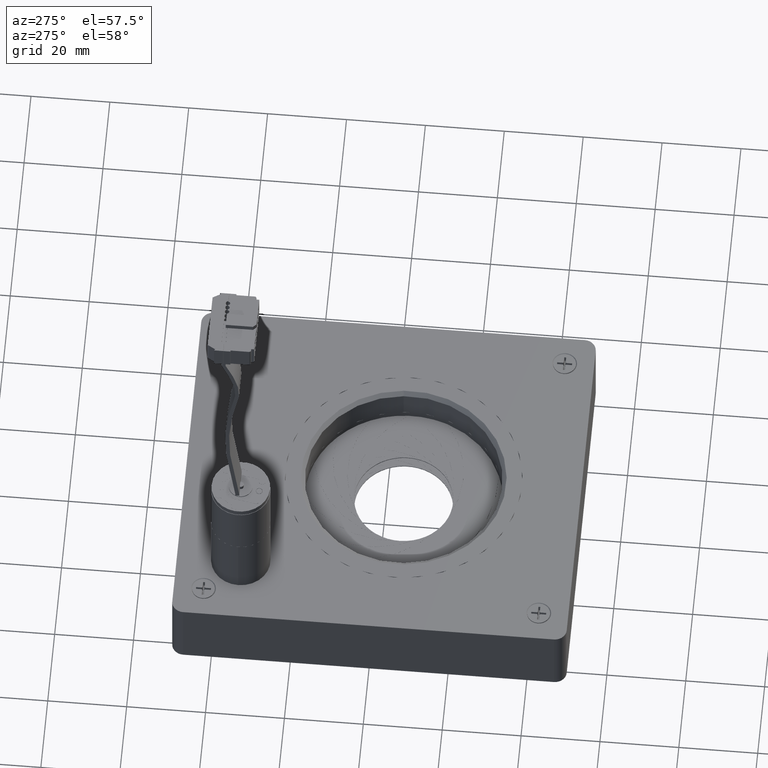
[diagram: clean part render]
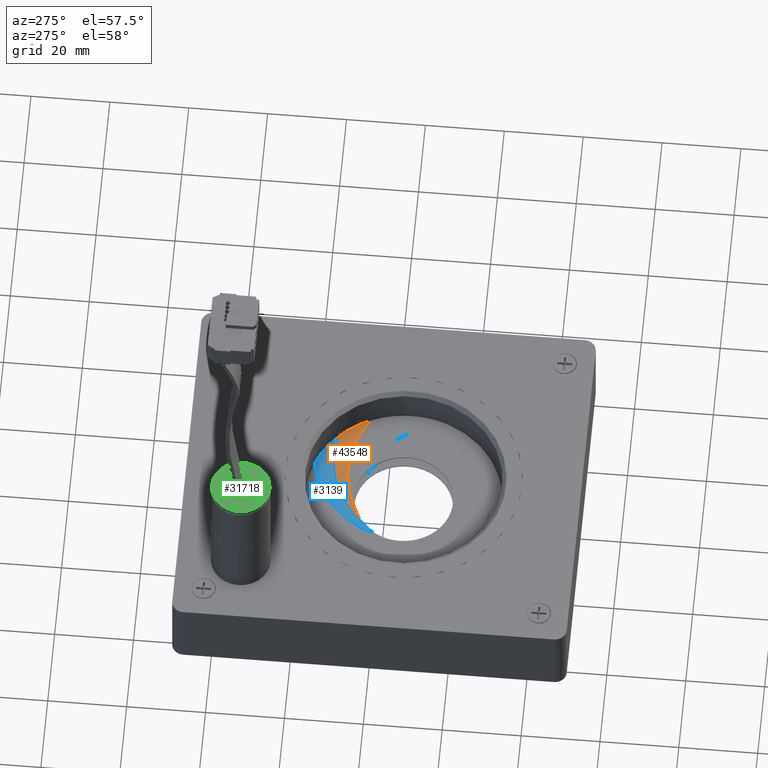
[diagram: same view with three faces highlighted in distinct colors, each labeled with its STEP entity id]
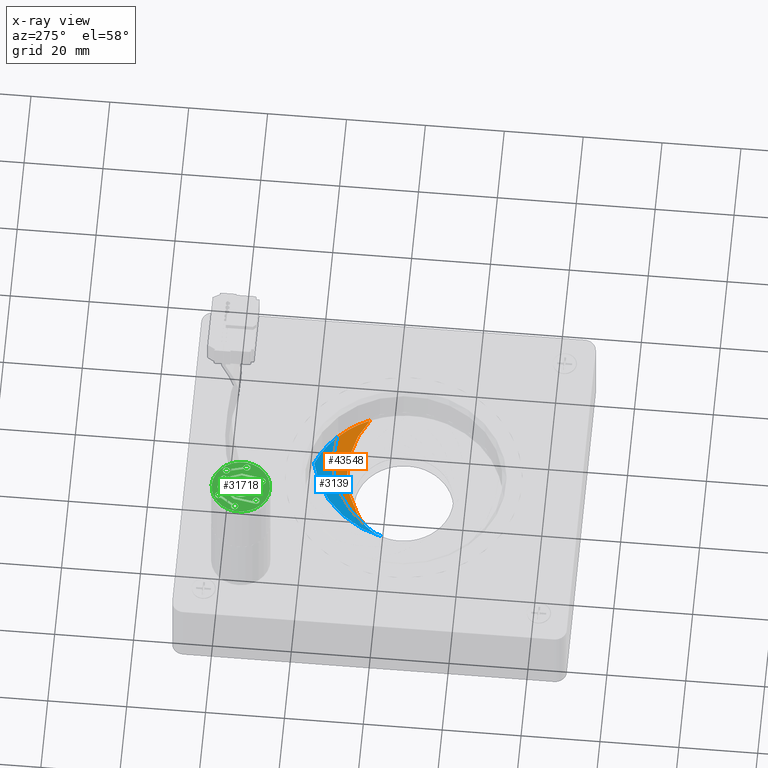
[diagram: x-ray of the same camera — body ghosted, the three highlighted faces saturated]
A machine part, auxiliary view with three faces highlighted in distinct colors.
The next image is the same camera in x-ray (body ghosted, the three faces saturated) — at least one of them is partly hidden behind the body in this view.
Their STEP definitions:

[orange] entity #43548 — the highlighted planar face has unit normal (-0, 0, 1).
#184 = CARTESIAN_POINT ( 'NONE',  ( 11.78796417266440800, -12.36593753290334300, -8.199999999999999300 ) ) ;
#268 = PLANE ( 'NONE',  #31407 ) ;
#1012 = CIRCLE ( 'NONE', #7680, 25.03526093125014300 ) ;
#3168 = ORIENTED_EDGE ( 'NONE', *, *, #27149, .F. ) ;
#4223 = DIRECTION ( 'NONE',  ( -0.9396926207859058700, 0.3420201433256759300, -5.255450071869759100E-017 ) ) ;
#5169 = CARTESIAN_POINT ( 'NONE',  ( 17.01892407112355000, 13.36084184772338500, -8.200000000000006400 ) ) ;
#6386 = ORIENTED_EDGE ( 'NONE', *, *, #13277, .T. ) ;
#7162 = EDGE_LOOP ( 'NONE', ( #11475, #3168, #6386, #29912 ) ) ;
#7435 = CIRCLE ( 'NONE', #33882, 12.50000000000008700 ) ;
#7512 = DIRECTION ( 'NONE',  ( -4.049638948671294400E-018, 1.425327888812758600E-016, 1.000000000000000000 ) ) ;
#7596 = EDGE_CURVE ( 'NONE', #24291, #20402, #1012, .T. ) ;
#7680 = AXIS2_PLACEMENT_3D ( 'NONE', #11332, #7512, #48289 ) ;
#8429 = DIRECTION ( 'NONE',  ( -0.9396926207859057600, 0.3420201433256759300, -6.607666755429408100E-017 ) ) ;
#9042 = FACE_OUTER_BOUND ( 'NONE', #7162, .T. ) ;
#9774 = CIRCLE ( 'NONE', #45657, 26.26319254412177500 ) ;
#11332 = CARTESIAN_POINT ( 'NONE',  ( 4.955342778693594300E-015, -5.000000000000010700, -8.200000000000001100 ) ) ;
#11475 = ORIENTED_EDGE ( 'NONE', *, *, #50900, .F. ) ;
#11943 = DIRECTION ( 'NONE',  ( 4.049638948671294400E-018, -1.425327888812758600E-016, -1.000000000000000000 ) ) ;
#13277 = EDGE_CURVE ( 'NONE', #28246, #24291, #9774, .T. ) ;
#14160 = CARTESIAN_POINT ( 'NONE',  ( -8.974734662410671900, 3.700812475816622500, -8.200000000000025900 ) ) ;
#14968 = AXIS2_PLACEMENT_3D ( 'NONE', #184, #32836, #8429 ) ;
#16285 = DIRECTION ( 'NONE',  ( -4.049638948672907600E-018, 1.425327888812764300E-016, 1.000000000000000000 ) ) ;
#20402 = VERTEX_POINT ( 'NONE', #5169 ) ;
#24291 = VERTEX_POINT ( 'NONE', #29785 ) ;
#27149 = EDGE_CURVE ( 'NONE', #28246, #37000, #7435, .T. ) ;
#28246 = VERTEX_POINT ( 'NONE', #32423 ) ;
#29785 = CARTESIAN_POINT ( 'NONE',  ( 22.74179111053886300, 5.467818635245714100, -8.200000000000025900 ) ) ;
#29912 = ORIENTED_EDGE ( 'NONE', *, *, #7596, .T. ) ;
#31407 = AXIS2_PLACEMENT_3D ( 'NONE', #36727, #16285, #4223 ) ;
#32423 = CARTESIAN_POINT ( 'NONE',  ( -5.045852014572291800, 6.436318351945204500, -8.200000000000002800 ) ) ;
#32836 = DIRECTION ( 'NONE',  ( 4.049638948671294400E-018, -1.425327888812758600E-016, -1.000000000000000000 ) ) ;
#33882 = AXIS2_PLACEMENT_3D ( 'NONE', #44719, #37214, #41150 ) ;
#36265 = CIRCLE ( 'NONE', #14968, 26.25319254412178100 ) ;
#36727 = CARTESIAN_POINT ( 'NONE',  ( 4.955342778693594300E-015, -5.000000000000010700, -8.200000000000001100 ) ) ;
#36892 = DIRECTION ( 'NONE',  ( -0.9396926207859056500, 0.3420201433256759800, -6.605150813491152800E-017 ) ) ;
#37000 = VERTEX_POINT ( 'NONE', #14160 ) ;
#37214 = DIRECTION ( 'NONE',  ( -4.049638948671294400E-018, 1.425327888812758600E-016, 1.000000000000000000 ) ) ;
#41150 = DIRECTION ( 'NONE',  ( -0.9396926207859057600, 0.3420201433256758700, 0.0000000000000000000 ) ) ;
#41154 = CARTESIAN_POINT ( 'NONE',  ( 8.071836571422695200, -16.31629751459794900, -8.199999999999999300 ) ) ;
#43548 = ADVANCED_FACE ( 'NONE', ( #9042 ), #268, .T. ) ;
#44719 = CARTESIAN_POINT ( 'NONE',  ( 4.955342778693594300E-015, -5.000000000000010700, -8.200000000000001100 ) ) ;
#45657 = AXIS2_PLACEMENT_3D ( 'NONE', #41154, #11943, #36892 ) ;
#48289 = DIRECTION ( 'NONE',  ( -0.9396926207859056500, 0.3420201433256759300, -6.929120813801653000E-017 ) ) ;
#50900 = EDGE_CURVE ( 'NONE', #37000, #20402, #36265, .T. ) ;

[blue] entity #3139 — the highlighted planar face has unit normal (-0, 0, 1).
#708 = DIRECTION ( 'NONE',  ( -0.9396926207859056500, 0.3420201433256759300, -6.929120813801653000E-017 ) ) ;
#3139 = ADVANCED_FACE ( 'NONE', ( #31648 ), #29974, .T. ) ;
#6081 = ORIENTED_EDGE ( 'NONE', *, *, #38958, .F. ) ;
#7327 = ORIENTED_EDGE ( 'NONE', *, *, #18150, .T. ) ;
#7507 = AXIS2_PLACEMENT_3D ( 'NONE', #21792, #13500, #49918 ) ;
#10501 = AXIS2_PLACEMENT_3D ( 'NONE', #49411, #37566, #12468 ) ;
#11055 = CARTESIAN_POINT ( 'NONE',  ( 8.697045635275252100, 18.47606626148674600, -8.200000000000027700 ) ) ;
#12468 = DIRECTION ( 'NONE',  ( -0.9396926207859056500, 0.3420201433256758700, -6.605150813491150300E-017 ) ) ;
#12856 = CIRCLE ( 'NONE', #10501, 26.26319254412178200 ) ;
#13500 = DIRECTION ( 'NONE',  ( -4.049638948672907600E-018, 1.425327888812764300E-016, 1.000000000000000000 ) ) ;
#15225 = AXIS2_PLACEMENT_3D ( 'NONE', #42279, #42463, #21712 ) ;
#16606 = CARTESIAN_POINT ( 'NONE',  ( -9.038248960886040400, 3.634816484502962000, -8.200000000000025900 ) ) ;
#17256 = CARTESIAN_POINT ( 'NONE',  ( 4.955342778693594300E-015, -5.000000000000010700, -8.200000000000001100 ) ) ;
#18150 = EDGE_CURVE ( 'NONE', #45176, #29899, #12856, .T. ) ;
#20005 = ORIENTED_EDGE ( 'NONE', *, *, #31679, .F. ) ;
#21150 = CARTESIAN_POINT ( 'NONE',  ( -11.62123044693141200, -0.3959797025516785800, -8.200000000000002800 ) ) ;
#21712 = DIRECTION ( 'NONE',  ( -0.9396926207859057600, 0.3420201433256759800, -6.607666755429406900E-017 ) ) ;
#21792 = CARTESIAN_POINT ( 'NONE',  ( 4.955342778693594300E-015, -5.000000000000010700, -8.200000000000001100 ) ) ;
#22492 = VERTEX_POINT ( 'NONE', #21150 ) ;
#22865 = DIRECTION ( 'NONE',  ( -4.049638948671294400E-018, 1.425327888812758600E-016, 1.000000000000000000 ) ) ;
#23471 = AXIS2_PLACEMENT_3D ( 'NONE', #17256, #33708, #708 ) ;
#25056 = EDGE_LOOP ( 'NONE', ( #20005, #6081, #7327, #29833 ) ) ;
#25610 = CIRCLE ( 'NONE', #39151, 12.50000000000008700 ) ;
#29833 = ORIENTED_EDGE ( 'NONE', *, *, #49157, .T. ) ;
#29899 = VERTEX_POINT ( 'NONE', #48993 ) ;
#29974 = PLANE ( 'NONE',  #7507 ) ;
#31648 = FACE_OUTER_BOUND ( 'NONE', #25056, .T. ) ;
#31679 = EDGE_CURVE ( 'NONE', #22492, #34234, #52618, .T. ) ;
#33708 = DIRECTION ( 'NONE',  ( -4.049638948671294400E-018, 1.425327888812758600E-016, 1.000000000000000000 ) ) ;
#34234 = VERTEX_POINT ( 'NONE', #11055 ) ;
#37566 = DIRECTION ( 'NONE',  ( 4.049638948671294400E-018, -1.425327888812758600E-016, -1.000000000000000000 ) ) ;
#38958 = EDGE_CURVE ( 'NONE', #45176, #22492, #25610, .T. ) ;
#39151 = AXIS2_PLACEMENT_3D ( 'NONE', #42931, #22865, #50861 ) ;
#42279 = CARTESIAN_POINT ( 'NONE',  ( 13.70948108677925800, -7.294180334214204600, -8.200000000000024200 ) ) ;
#42463 = DIRECTION ( 'NONE',  ( 4.049638948671294400E-018, -1.425327888812758600E-016, -1.000000000000000000 ) ) ;
#42931 = CARTESIAN_POINT ( 'NONE',  ( 4.955342778693594300E-015, -5.000000000000010700, -8.200000000000001100 ) ) ;
#45176 = VERTEX_POINT ( 'NONE', #16606 ) ;
#47742 = CIRCLE ( 'NONE', #23471, 25.03526093125014300 ) ;
#48993 = CARTESIAN_POINT ( 'NONE',  ( 17.00481457496291100, 13.37391006745454900, -8.200000000000006400 ) ) ;
#49157 = EDGE_CURVE ( 'NONE', #29899, #34234, #47742, .T. ) ;
#49411 = CARTESIAN_POINT ( 'NONE',  ( 11.78796417266440800, -12.36593753290334300, -8.199999999999999300 ) ) ;
#49918 = DIRECTION ( 'NONE',  ( -0.9396926207859058700, 0.3420201433256759300, -5.255450071869759100E-017 ) ) ;
#50861 = DIRECTION ( 'NONE',  ( -0.9396926207859057600, 0.3420201433256758700, 0.0000000000000000000 ) ) ;
#52618 = CIRCLE ( 'NONE', #15225, 26.25319254412178800 ) ;

[green] entity #31718 — the highlighted planar face has unit normal (-0, -0, 1).
#19 = ORIENTED_EDGE ( 'NONE', *, *, #25878, .F. ) ;
#253 = CARTESIAN_POINT ( 'NONE',  ( -32.39554972308153000, 29.69614231960646600, 36.39999999999999900 ) ) ;
#350 = DIRECTION ( 'NONE',  ( 0.0000000000000000000, -1.000000000000000000, 0.0000000000000000000 ) ) ;
#376 = CARTESIAN_POINT ( 'NONE',  ( -28.63088670356299300, 39.68042613009305300, 36.39999999999999900 ) ) ;
#445 = VECTOR ( 'NONE', #31306, 1000.000000000000000 ) ;
#512 = VERTEX_POINT ( 'NONE', #1417 ) ;
#599 = FACE_BOUND ( 'NONE', #1780, .T. ) ;
#824 = CIRCLE ( 'NONE', #18021, 0.9000000000000050200 ) ;
#826 = CARTESIAN_POINT ( 'NONE',  ( -25.59465210520176000, 37.61550586504789400, 36.39999999999999900 ) ) ;
#1417 = CARTESIAN_POINT ( 'NONE',  ( -31.13229839621400400, 40.12149250136715000, 36.39999999999999900 ) ) ;
#1464 = DIRECTION ( 'NONE',  ( 0.0000000000000000000, -1.000000000000000000, 0.0000000000000000000 ) ) ;
#1652 = CARTESIAN_POINT ( 'NONE',  ( -23.65323640222665700, 36.99864550317936100, 36.39999999999999900 ) ) ;
#1780 = EDGE_LOOP ( 'NONE', ( #12984, #32257, #40547, #16226, #18443, #26363, #21147, #3741, #12786, #26232 ) ) ;
#1952 = EDGE_CURVE ( 'NONE', #2207, #3678, #38821, .T. ) ;
#1992 = VERTEX_POINT ( 'NONE', #6483 ) ;
#2015 = DIRECTION ( 'NONE',  ( -1.063288424787887700E-017, -6.030208312509518900E-017, 1.000000000000000000 ) ) ;
#2072 = EDGE_CURVE ( 'NONE', #31536, #28526, #50967, .T. ) ;
#2144 = LINE ( 'NONE', #48854, #43953 ) ;
#2160 = CARTESIAN_POINT ( 'NONE',  ( -34.12253862811201100, 34.87470479599903700, 36.39999999999999900 ) ) ;
#2188 = EDGE_CURVE ( 'NONE', #17546, #9780, #2144, .T. ) ;
#2207 = VERTEX_POINT ( 'NONE', #16384 ) ;
#2235 = DIRECTION ( 'NONE',  ( -1.063288424787887700E-017, -6.030208312509518900E-017, 1.000000000000000000 ) ) ;
#2286 = VECTOR ( 'NONE', #26700, 1000.000000000000000 ) ;
#2501 = EDGE_CURVE ( 'NONE', #43810, #11562, #46481, .T. ) ;
#2617 = CARTESIAN_POINT ( 'NONE',  ( -31.00647263243760000, 39.84550125574395500, 36.39999999999999900 ) ) ;
#3074 = DIRECTION ( 'NONE',  ( -1.063288424787887700E-017, -6.030208312509518900E-017, 1.000000000000000000 ) ) ;
#3202 = DIRECTION ( 'NONE',  ( -1.875376730785725100E-015, -1.000000000000000000, 0.0000000000000000000 ) ) ;
#3678 = VERTEX_POINT ( 'NONE', #13250 ) ;
#3741 = ORIENTED_EDGE ( 'NONE', *, *, #25792, .F. ) ;
#4048 = CIRCLE ( 'NONE', #33656, 0.9000000000000050200 ) ;
#4081 = VECTOR ( 'NONE', #34589, 999.9999999999998900 ) ;
#4172 = CARTESIAN_POINT ( 'NONE',  ( -26.12947501091193600, 38.33935975881905000, 36.39999999999999900 ) ) ;
#4369 = CIRCLE ( 'NONE', #7628, 0.9000000000000050200 ) ;
#4500 = AXIS2_PLACEMENT_3D ( 'NONE', #52413, #43963, #44124 ) ;
#4604 = CARTESIAN_POINT ( 'NONE',  ( -25.20645312609236300, 28.42851062263787700, 36.39999999999999900 ) ) ;
#5626 = DIRECTION ( 'NONE',  ( 0.0000000000000000000, -1.000000000000000000, 0.0000000000000000000 ) ) ;
#5761 = CARTESIAN_POINT ( 'NONE',  ( -26.09278010380334900, 29.48479398253806100, 36.39999999999999900 ) ) ;
#5771 = DIRECTION ( 'NONE',  ( 0.0000000000000000000, -1.000000000000000000, 0.0000000000000000000 ) ) ;
#5849 = VERTEX_POINT ( 'NONE', #9328 ) ;
#5893 = CIRCLE ( 'NONE', #5963, 0.9000000000000050200 ) ;
#5963 = AXIS2_PLACEMENT_3D ( 'NONE', #35073, #2235, #39732 ) ;
#5993 = AXIS2_PLACEMENT_3D ( 'NONE', #43420, #22639, #31035 ) ;
#6169 = CARTESIAN_POINT ( 'NONE',  ( -28.99987157061260800, 37.95954235763292000, 36.39999999999999900 ) ) ;
#6483 = CARTESIAN_POINT ( 'NONE',  ( -23.62806331826097800, 38.79829338754505100, 36.39999999999999900 ) ) ;
#7355 = VERTEX_POINT ( 'NONE', #38030 ) ;
#7395 = LINE ( 'NONE', #14167, #47219 ) ;
#7577 = DIRECTION ( 'NONE',  ( 0.0000000000000000000, -1.000000000000000000, 0.0000000000000000000 ) ) ;
#7628 = AXIS2_PLACEMENT_3D ( 'NONE', #24971, #20680, #350 ) ;
#7688 = LINE ( 'NONE', #253, #25700 ) ;
#7724 = CARTESIAN_POINT ( 'NONE',  ( -29.38102845398062600, 38.28314617445401100, 36.39999999999999900 ) ) ;
#8155 = EDGE_CURVE ( 'NONE', #16639, #40529, #26086, .T. ) ;
#8248 = EDGE_CURVE ( 'NONE', #31803, #1992, #46584, .T. ) ;
#8540 = ORIENTED_EDGE ( 'NONE', *, *, #12191, .F. ) ;
#8682 = VERTEX_POINT ( 'NONE', #21057 ) ;
#8816 = DIRECTION ( 'NONE',  ( -1.063288424787887700E-017, -6.030208312509518900E-017, 1.000000000000000000 ) ) ;
#8828 = CARTESIAN_POINT ( 'NONE',  ( -22.76369200153491000, 33.56517466846548800, 36.39999999999999900 ) ) ;
#9240 = CARTESIAN_POINT ( 'NONE',  ( -33.83849589100358200, 35.72870697602901700, 36.39999999999999900 ) ) ;
#9273 = LINE ( 'NONE', #42843, #45210 ) ;
#9328 = CARTESIAN_POINT ( 'NONE',  ( -32.00162662187664600, 30.52668304853969200, 36.39999999999999900 ) ) ;
#9530 = DIRECTION ( 'NONE',  ( 0.0000000000000000000, -1.000000000000000000, 0.0000000000000000000 ) ) ;
#9571 = CARTESIAN_POINT ( 'NONE',  ( -31.13229839621400400, 39.22149250136715200, 36.39999999999999900 ) ) ;
#9689 = ORIENTED_EDGE ( 'NONE', *, *, #29888, .F. ) ;
#9780 = VERTEX_POINT ( 'NONE', #30255 ) ;
#10009 = AXIS2_PLACEMENT_3D ( 'NONE', #14028, #10065, #38800 ) ;
#10065 = DIRECTION ( 'NONE',  ( -1.063288424787887700E-017, -6.030208312509518900E-017, 1.000000000000000000 ) ) ;
#10129 = AXIS2_PLACEMENT_3D ( 'NONE', #27784, #31727, #3202 ) ;
#10270 = CARTESIAN_POINT ( 'NONE',  ( -29.04720336284002300, 29.10573851553885300, 36.39999999999999900 ) ) ;
#10582 = EDGE_CURVE ( 'NONE', #16897, #37888, #13610, .T. ) ;
#10832 = DIRECTION ( 'NONE',  ( 0.0000000000000000000, -1.000000000000000000, 0.0000000000000000000 ) ) ;
#10884 = CIRCLE ( 'NONE', #4500, 7.400000000000049200 ) ;
#11545 = FACE_BOUND ( 'NONE', #43161, .T. ) ;
#11562 = VERTEX_POINT ( 'NONE', #376 ) ;
#11625 = ORIENTED_EDGE ( 'NONE', *, *, #33668, .T. ) ;
#11627 = ORIENTED_EDGE ( 'NONE', *, *, #26519, .F. ) ;
#11752 = LINE ( 'NONE', #44625, #34210 ) ;
#11775 = ORIENTED_EDGE ( 'NONE', *, *, #27381, .F. ) ;
#11928 = ORIENTED_EDGE ( 'NONE', *, *, #25719, .F. ) ;
#11940 = CIRCLE ( 'NONE', #10129, 7.400000000000049200 ) ;
#12054 = VERTEX_POINT ( 'NONE', #17355 ) ;
#12191 = EDGE_CURVE ( 'NONE', #14835, #512, #52284, .T. ) ;
#12614 = AXIS2_PLACEMENT_3D ( 'NONE', #14221, #25920, #9530 ) ;
#12786 = ORIENTED_EDGE ( 'NONE', *, *, #14817, .F. ) ;
#12824 = ORIENTED_EDGE ( 'NONE', *, *, #33218, .F. ) ;
#12979 = DIRECTION ( 'NONE',  ( 0.0000000000000000000, -1.000000000000000000, 0.0000000000000000000 ) ) ;
#12984 = ORIENTED_EDGE ( 'NONE', *, *, #42116, .F. ) ;
#13203 = LINE ( 'NONE', #14127, #2286 ) ;
#13250 = CARTESIAN_POINT ( 'NONE',  ( -34.12253862811201100, 33.97470479599903800, 36.39999999999999900 ) ) ;
#13412 = PLANE ( 'NONE',  #20757 ) ;
#13596 = CARTESIAN_POINT ( 'NONE',  ( -28.21369211003875700, 33.83281572999745600, 36.39999999999999900 ) ) ;
#13610 = CIRCLE ( 'NONE', #29735, 3.000000000000020000 ) ;
#13674 = CARTESIAN_POINT ( 'NONE',  ( -32.00162662187664600, 29.62668304853969300, 36.39999999999999900 ) ) ;
#13857 = CARTESIAN_POINT ( 'NONE',  ( -26.12947501091193600, 39.23935975881904900, 36.39999999999999900 ) ) ;
#14028 = CARTESIAN_POINT ( 'NONE',  ( -32.00162662187664600, 29.62668304853969300, 36.39999999999999900 ) ) ;
#14127 = CARTESIAN_POINT ( 'NONE',  ( -24.23402333115760500, 33.94343403950619400, 36.39999999999999900 ) ) ;
#14167 = CARTESIAN_POINT ( 'NONE',  ( -24.74996098468423600, 33.89679144657620200, 36.39999999999999900 ) ) ;
#14221 = CARTESIAN_POINT ( 'NONE',  ( -22.30484559196541000, 32.79092666399586900, 36.39999999999999900 ) ) ;
#14235 = AXIS2_PLACEMENT_3D ( 'NONE', #36335, #15529, #23989 ) ;
#14494 = CARTESIAN_POINT ( 'NONE',  ( -30.59453237094113800, 39.56211949740675500, 36.39999999999999900 ) ) ;
#14575 = DIRECTION ( 'NONE',  ( -1.063288424787887700E-017, -6.030208312509518900E-017, 1.000000000000000000 ) ) ;
#14629 = CIRCLE ( 'NONE', #37062, 3.000000000000020000 ) ;
#14767 = VERTEX_POINT ( 'NONE', #29454 ) ;
#14817 = EDGE_CURVE ( 'NONE', #17759, #5849, #38461, .T. ) ;
#14835 = VERTEX_POINT ( 'NONE', #51166 ) ;
#14840 = EDGE_CURVE ( 'NONE', #36440, #41770, #10884, .T. ) ;
#14871 = CARTESIAN_POINT ( 'NONE',  ( -28.63088670356299300, 38.78042613009305500, 36.39999999999999900 ) ) ;
#14964 = AXIS2_PLACEMENT_3D ( 'NONE', #36535, #48037, #44051 ) ;
#14980 = CARTESIAN_POINT ( 'NONE',  ( -26.12947501091193600, 38.33935975881905000, 36.39999999999999900 ) ) ;
#15135 = CARTESIAN_POINT ( 'NONE',  ( -26.12947501091193600, 37.43935975881905200, 36.39999999999999900 ) ) ;
#15315 = CARTESIAN_POINT ( 'NONE',  ( -24.74996098468423600, 33.89679144657620200, 36.39999999999999900 ) ) ;
#15317 = AXIS2_PLACEMENT_3D ( 'NONE', #4172, #17100, #41648 ) ;
#15476 = EDGE_CURVE ( 'NONE', #28526, #31536, #47382, .T. ) ;
#15529 = DIRECTION ( 'NONE',  ( -1.063288424787887700E-017, -6.030208312509518900E-017, 1.000000000000000000 ) ) ;
#15645 = CARTESIAN_POINT ( 'NONE',  ( -31.82828139481888700, 38.65087207967418700, 36.39999999999999900 ) ) ;
#15699 = DIRECTION ( 'NONE',  ( -1.063288424787887700E-017, -6.030208312509518900E-017, 1.000000000000000000 ) ) ;
#15790 = DIRECTION ( 'NONE',  ( -0.2507997597921673400, 0.9680389870703510800, 5.570804265138260900E-017 ) ) ;
#16044 = EDGE_CURVE ( 'NONE', #48089, #40936, #29319, .T. ) ;
#16116 = ORIENTED_EDGE ( 'NONE', *, *, #10582, .F. ) ;
#16226 = ORIENTED_EDGE ( 'NONE', *, *, #2501, .F. ) ;
#16239 = EDGE_CURVE ( 'NONE', #21688, #14767, #32515, .T. ) ;
#16254 = AXIS2_PLACEMENT_3D ( 'NONE', #20696, #20875, #45028 ) ;
#16287 = CIRCLE ( 'NONE', #14235, 0.9000000000000050200 ) ;
#16348 = ORIENTED_EDGE ( 'NONE', *, *, #16044, .F. ) ;
#16384 = CARTESIAN_POINT ( 'NONE',  ( -34.12253862811201100, 35.77470479599903500, 36.39999999999999900 ) ) ;
#16639 = VERTEX_POINT ( 'NONE', #18084 ) ;
#16897 = VERTEX_POINT ( 'NONE', #52852 ) ;
#17100 = DIRECTION ( 'NONE',  ( -1.063288424787887700E-017, -6.030208312509518900E-017, 1.000000000000000000 ) ) ;
#17218 = DIRECTION ( 'NONE',  ( -1.887379141862766500E-015, -1.000000000000000000, -6.030208312509449900E-017 ) ) ;
#17355 = CARTESIAN_POINT ( 'NONE',  ( -32.88795359958763200, 29.78296640843987900, 36.39999999999999900 ) ) ;
#17360 = CARTESIAN_POINT ( 'NONE',  ( -29.04720336284002300, 29.95573851553885400, 36.39999999999999900 ) ) ;
#17546 = VERTEX_POINT ( 'NONE', #7724 ) ;
#17759 = VERTEX_POINT ( 'NONE', #17903 ) ;
#17903 = CARTESIAN_POINT ( 'NONE',  ( -32.00162662187664600, 28.72668304853969400, 36.39999999999999900 ) ) ;
#18021 = AXIS2_PLACEMENT_3D ( 'NONE', #23215, #3074, #23575 ) ;
#18084 = CARTESIAN_POINT ( 'NONE',  ( -33.42655562950712100, 35.44532521769190900, 36.39999999999999900 ) ) ;
#18314 = EDGE_CURVE ( 'NONE', #50734, #41600, #45550, .T. ) ;
#18443 = ORIENTED_EDGE ( 'NONE', *, *, #32298, .F. ) ;
#18625 = CARTESIAN_POINT ( 'NONE',  ( -23.16921690869137900, 37.12404538307553300, 36.39999999999999900 ) ) ;
#18774 = AXIS2_PLACEMENT_3D ( 'NONE', #14980, #47608, #10832 ) ;
#19145 = ORIENTED_EDGE ( 'NONE', *, *, #22050, .F. ) ;
#20320 = EDGE_CURVE ( 'NONE', #37888, #16897, #14629, .T. ) ;
#20346 = VECTOR ( 'NONE', #52342, 1000.000000000000000 ) ;
#20680 = DIRECTION ( 'NONE',  ( -1.063288424787887700E-017, -6.030208312509518900E-017, 1.000000000000000000 ) ) ;
#20696 = CARTESIAN_POINT ( 'NONE',  ( -26.09278010380334900, 28.58479398253806300, 36.39999999999999900 ) ) ;
#20757 = AXIS2_PLACEMENT_3D ( 'NONE', #13596, #38338, #17218 ) ;
#20781 = VERTEX_POINT ( 'NONE', #44585 ) ;
#20875 = DIRECTION ( 'NONE',  ( -1.063288424787887700E-017, -6.030208312509518900E-017, 1.000000000000000000 ) ) ;
#21057 = CARTESIAN_POINT ( 'NONE',  ( -26.06350143967427600, 37.44178107820205500, 36.39999999999999900 ) ) ;
#21147 = ORIENTED_EDGE ( 'NONE', *, *, #30535, .F. ) ;
#21216 = ORIENTED_EDGE ( 'NONE', *, *, #1952, .F. ) ;
#21292 = ORIENTED_EDGE ( 'NONE', *, *, #29146, .F. ) ;
#21487 = CARTESIAN_POINT ( 'NONE',  ( -28.21369211003876400, 30.83281572999745300, 36.39999999999999900 ) ) ;
#21688 = VERTEX_POINT ( 'NONE', #15315 ) ;
#21839 = ORIENTED_EDGE ( 'NONE', *, *, #8155, .F. ) ;
#21891 = EDGE_CURVE ( 'NONE', #41600, #36595, #26688, .T. ) ;
#21991 = ORIENTED_EDGE ( 'NONE', *, *, #35151, .F. ) ;
#22050 = EDGE_CURVE ( 'NONE', #8682, #21688, #7395, .T. ) ;
#22237 = AXIS2_PLACEMENT_3D ( 'NONE', #23957, #41109, #32335 ) ;
#22512 = CARTESIAN_POINT ( 'NONE',  ( -28.63088670356299300, 37.88042613009305600, 36.39999999999999900 ) ) ;
#22639 = DIRECTION ( 'NONE',  ( -1.063288424787887700E-017, -6.030208312509518900E-017, 1.000000000000000000 ) ) ;
#23215 = CARTESIAN_POINT ( 'NONE',  ( -34.12253862811201100, 34.87470479599903700, 36.39999999999999900 ) ) ;
#23230 = DIRECTION ( 'NONE',  ( -1.063288424787887700E-017, -6.030208312509518900E-017, 1.000000000000000000 ) ) ;
#23575 = DIRECTION ( 'NONE',  ( 0.0000000000000000000, -1.000000000000000000, 0.0000000000000000000 ) ) ;
#23792 = CARTESIAN_POINT ( 'NONE',  ( -32.00162662187664600, 29.62668304853969300, 36.39999999999999900 ) ) ;
#23957 = CARTESIAN_POINT ( 'NONE',  ( -31.13229839621400400, 39.22149250136715200, 36.39999999999999900 ) ) ;
#23989 = DIRECTION ( 'NONE',  ( 0.0000000000000000000, -1.000000000000000000, 0.0000000000000000000 ) ) ;
#24971 = CARTESIAN_POINT ( 'NONE',  ( -28.63088670356299300, 38.78042613009305500, 36.39999999999999900 ) ) ;
#25043 = FACE_BOUND ( 'NONE', #30182, .T. ) ;
#25603 = CIRCLE ( 'NONE', #46548, 0.9000000000000050200 ) ;
#25663 = DIRECTION ( 'NONE',  ( -2.312964634635727300E-015, -1.000000000000000000, 0.0000000000000000000 ) ) ;
#25700 = VECTOR ( 'NONE', #49268, 999.9999999999998900 ) ;
#25719 = EDGE_CURVE ( 'NONE', #36595, #8682, #49974, .T. ) ;
#25792 = EDGE_CURVE ( 'NONE', #5849, #20781, #25603, .T. ) ;
#25878 = EDGE_CURVE ( 'NONE', #14767, #42556, #50650, .T. ) ;
#25920 = DIRECTION ( 'NONE',  ( -1.063288424787887700E-017, -6.030208312509518900E-017, 1.000000000000000000 ) ) ;
#26086 = LINE ( 'NONE', #14494, #20346 ) ;
#26232 = ORIENTED_EDGE ( 'NONE', *, *, #50092, .F. ) ;
#26363 = ORIENTED_EDGE ( 'NONE', *, *, #39769, .F. ) ;
#26431 = VECTOR ( 'NONE', #33820, 999.9999999999998900 ) ;
#26519 = EDGE_CURVE ( 'NONE', #40529, #14835, #48663, .T. ) ;
#26688 = CIRCLE ( 'NONE', #52938, 0.9000000000000050200 ) ;
#26700 = DIRECTION ( 'NONE',  ( -0.3474495736916700700, 0.9376986689451344300, 5.285079198198154200E-017 ) ) ;
#27279 = VERTEX_POINT ( 'NONE', #8828 ) ;
#27323 = CARTESIAN_POINT ( 'NONE',  ( -29.04720336284002300, 29.10573851553885300, 36.39999999999999900 ) ) ;
#27381 = EDGE_CURVE ( 'NONE', #27279, #39282, #49198, .T. ) ;
#27784 = CARTESIAN_POINT ( 'NONE',  ( -28.21369211003875700, 33.83281572999745600, 36.39999999999999900 ) ) ;
#27859 = ORIENTED_EDGE ( 'NONE', *, *, #20320, .F. ) ;
#28002 = EDGE_CURVE ( 'NONE', #41609, #27279, #9273, .T. ) ;
#28372 = DIRECTION ( 'NONE',  ( -0.6472076336421758200, -0.7623137667360435600, -5.285079198198162200E-017 ) ) ;
#28526 = VERTEX_POINT ( 'NONE', #17360 ) ;
#28550 = AXIS2_PLACEMENT_3D ( 'NONE', #2160, #43941, #51316 ) ;
#28747 = ORIENTED_EDGE ( 'NONE', *, *, #47089, .F. ) ;
#29146 = EDGE_CURVE ( 'NONE', #1992, #41609, #4048, .T. ) ;
#29241 = DIRECTION ( 'NONE',  ( -1.063288424787887700E-017, -6.030208312509518900E-017, 1.000000000000000000 ) ) ;
#29319 = LINE ( 'NONE', #2617, #445 ) ;
#29407 = CARTESIAN_POINT ( 'NONE',  ( -26.12947501091193600, 38.33935975881905000, 36.39999999999999900 ) ) ;
#29454 = CARTESIAN_POINT ( 'NONE',  ( -25.55885736601115700, 29.30931210520205700, 36.39999999999999900 ) ) ;
#29735 = AXIS2_PLACEMENT_3D ( 'NONE', #43611, #14575, #43262 ) ;
#29888 = EDGE_CURVE ( 'NONE', #39282, #31803, #11752, .T. ) ;
#29916 = CARTESIAN_POINT ( 'NONE',  ( -28.21369211003875700, 33.83281572999745600, 36.39999999999999900 ) ) ;
#30136 = ORIENTED_EDGE ( 'NONE', *, *, #31270, .F. ) ;
#30182 = EDGE_LOOP ( 'NONE', ( #28747, #52054, #12824, #21991, #19, #39202, #19145, #11928, #34285, #52890 ) ) ;
#30255 = CARTESIAN_POINT ( 'NONE',  ( -31.91552380465282500, 35.29788982530825300, 36.39999999999999900 ) ) ;
#30384 = DIRECTION ( 'NONE',  ( -1.063288424787887700E-017, -6.030208312509518900E-017, 1.000000000000000000 ) ) ;
#30531 = AXIS2_PLACEMENT_3D ( 'NONE', #14871, #43536, #34564 ) ;
#30535 = EDGE_CURVE ( 'NONE', #20781, #48917, #7688, .T. ) ;
#30769 = VERTEX_POINT ( 'NONE', #34314 ) ;
#31035 = DIRECTION ( 'NONE',  ( 0.0000000000000000000, -1.000000000000000000, 0.0000000000000000000 ) ) ;
#31208 = CIRCLE ( 'NONE', #16254, 0.9000000000000050200 ) ;
#31270 = EDGE_CURVE ( 'NONE', #3678, #16639, #38497, .T. ) ;
#31306 = DIRECTION ( 'NONE',  ( -0.5667635166742074300, -0.8238805229929188100, -5.570804265138283100E-017 ) ) ;
#31370 = ORIENTED_EDGE ( 'NONE', *, *, #28002, .F. ) ;
#31536 = VERTEX_POINT ( 'NONE', #37127 ) ;
#31718 = ADVANCED_FACE ( 'NONE', ( #11545, #25043, #41685, #46153, #45506, #599, #44850 ), #13412, .T. ) ;
#31727 = DIRECTION ( 'NONE',  ( -1.063288424787887700E-017, -6.030208312509518900E-017, 1.000000000000000000 ) ) ;
#31803 = VERTEX_POINT ( 'NONE', #18625 ) ;
#32257 = ORIENTED_EDGE ( 'NONE', *, *, #2188, .F. ) ;
#32298 = EDGE_CURVE ( 'NONE', #51756, #43810, #4369, .T. ) ;
#32335 = DIRECTION ( 'NONE',  ( 0.0000000000000000000, -1.000000000000000000, 0.0000000000000000000 ) ) ;
#32515 = LINE ( 'NONE', #44435, #36409 ) ;
#32802 = CARTESIAN_POINT ( 'NONE',  ( -31.44665370516725700, 35.07759905471132100, 36.39999999999999900 ) ) ;
#33218 = EDGE_CURVE ( 'NONE', #30769, #38037, #31208, .T. ) ;
#33329 = ORIENTED_EDGE ( 'NONE', *, *, #42683, .F. ) ;
#33392 = CARTESIAN_POINT ( 'NONE',  ( -31.13229839621400400, 39.22149250136715200, 36.39999999999999900 ) ) ;
#33538 = DIRECTION ( 'NONE',  ( 0.0000000000000000000, -1.000000000000000000, 0.0000000000000000000 ) ) ;
#33605 = AXIS2_PLACEMENT_3D ( 'NONE', #27323, #23230, #47799 ) ;
#33656 = AXIS2_PLACEMENT_3D ( 'NONE', #42547, #38419, #38599 ) ;
#33668 = EDGE_CURVE ( 'NONE', #41770, #36440, #11940, .T. ) ;
#33820 = DIRECTION ( 'NONE',  ( 0.1736481776669285500, 0.9848077530122084600, 6.123233995736731500E-017 ) ) ;
#34210 = VECTOR ( 'NONE', #15790, 999.9999999999998900 ) ;
#34285 = ORIENTED_EDGE ( 'NONE', *, *, #21891, .F. ) ;
#34314 = CARTESIAN_POINT ( 'NONE',  ( -26.09278010380334900, 27.68479398253806400, 36.39999999999999900 ) ) ;
#34564 = DIRECTION ( 'NONE',  ( 0.0000000000000000000, -1.000000000000000000, 0.0000000000000000000 ) ) ;
#34589 = DIRECTION ( 'NONE',  ( -0.1736481776669285300, -0.9848077530122084600, -6.123233995736731500E-017 ) ) ;
#34741 = LINE ( 'NONE', #4604, #26431 ) ;
#35073 = CARTESIAN_POINT ( 'NONE',  ( -28.63088670356299300, 38.78042613009305500, 36.39999999999999900 ) ) ;
#35151 = EDGE_CURVE ( 'NONE', #42556, #30769, #16287, .T. ) ;
#35402 = EDGE_LOOP ( 'NONE', ( #11625, #37182 ) ) ;
#35710 = AXIS2_PLACEMENT_3D ( 'NONE', #33392, #8816, #12979 ) ;
#35928 = CARTESIAN_POINT ( 'NONE',  ( -28.21369211003874300, 41.23281572999745500, 36.39999999999999900 ) ) ;
#36259 = AXIS2_PLACEMENT_3D ( 'NONE', #23792, #15699, #7577 ) ;
#36335 = CARTESIAN_POINT ( 'NONE',  ( -26.09278010380334900, 28.58479398253806300, 36.39999999999999900 ) ) ;
#36409 = VECTOR ( 'NONE', #40001, 1000.000000000000000 ) ;
#36440 = VERTEX_POINT ( 'NONE', #38992 ) ;
#36535 = CARTESIAN_POINT ( 'NONE',  ( -23.62806331826097800, 37.89829338754505300, 36.39999999999999900 ) ) ;
#36595 = VERTEX_POINT ( 'NONE', #15135 ) ;
#37062 = AXIS2_PLACEMENT_3D ( 'NONE', #29916, #50234, #25663 ) ;
#37127 = CARTESIAN_POINT ( 'NONE',  ( -29.04720336284002300, 28.25573851553885200, 36.39999999999999900 ) ) ;
#37182 = ORIENTED_EDGE ( 'NONE', *, *, #14840, .T. ) ;
#37888 = VERTEX_POINT ( 'NONE', #21487 ) ;
#37890 = CARTESIAN_POINT ( 'NONE',  ( -22.27967250799973100, 33.69057454836156000, 36.39999999999999900 ) ) ;
#38030 = CARTESIAN_POINT ( 'NONE',  ( -24.23402333115760500, 33.94343403950619400, 36.39999999999999900 ) ) ;
#38037 = VERTEX_POINT ( 'NONE', #42751 ) ;
#38275 = EDGE_LOOP ( 'NONE', ( #33329, #16348, #53133, #8540, #11627, #21839, #30136, #21216 ) ) ;
#38338 = DIRECTION ( 'NONE',  ( -1.063288424787887500E-017, -6.030208312509447400E-017, 1.000000000000000000 ) ) ;
#38382 = DIRECTION ( 'NONE',  ( 0.3474495736916705100, -0.9376986689451342100, -5.285079198198151700E-017 ) ) ;
#38419 = DIRECTION ( 'NONE',  ( -1.063288424787887700E-017, -6.030208312509518900E-017, 1.000000000000000000 ) ) ;
#38461 = CIRCLE ( 'NONE', #10009, 0.9000000000000050200 ) ;
#38497 = CIRCLE ( 'NONE', #28550, 0.9000000000000050200 ) ;
#38599 = DIRECTION ( 'NONE',  ( 0.0000000000000000000, -1.000000000000000000, 0.0000000000000000000 ) ) ;
#38800 = DIRECTION ( 'NONE',  ( 0.0000000000000000000, -1.000000000000000000, 0.0000000000000000000 ) ) ;
#38821 = CIRCLE ( 'NONE', #42882, 0.9000000000000050200 ) ;
#38992 = CARTESIAN_POINT ( 'NONE',  ( -28.21369211003877100, 26.43281572999745400, 36.39999999999999900 ) ) ;
#39175 = DIRECTION ( 'NONE',  ( -1.063288424787887700E-017, -6.030208312509518900E-017, 1.000000000000000000 ) ) ;
#39202 = ORIENTED_EDGE ( 'NONE', *, *, #16239, .F. ) ;
#39282 = VERTEX_POINT ( 'NONE', #37890 ) ;
#39732 = DIRECTION ( 'NONE',  ( 0.0000000000000000000, -1.000000000000000000, 0.0000000000000000000 ) ) ;
#39769 = EDGE_CURVE ( 'NONE', #48917, #51756, #46046, .T. ) ;
#40001 = DIRECTION ( 'NONE',  ( -0.1736481776669285300, -0.9848077530122084600, -6.123233995736727800E-017 ) ) ;
#40529 = VERTEX_POINT ( 'NONE', #51283 ) ;
#40547 = ORIENTED_EDGE ( 'NONE', *, *, #50028, .F. ) ;
#40687 = LINE ( 'NONE', #46800, #4081 ) ;
#40936 = VERTEX_POINT ( 'NONE', #9240 ) ;
#40966 = CIRCLE ( 'NONE', #35710, 0.9000000000000050200 ) ;
#41052 = DIRECTION ( 'NONE',  ( 0.6472076336421761500, 0.7623137667360433400, 5.285079198198160300E-017 ) ) ;
#41109 = DIRECTION ( 'NONE',  ( -1.063288424787887700E-017, -6.030208312509518900E-017, 1.000000000000000000 ) ) ;
#41600 = VERTEX_POINT ( 'NONE', #13857 ) ;
#41609 = VERTEX_POINT ( 'NONE', #1652 ) ;
#41648 = DIRECTION ( 'NONE',  ( 0.0000000000000000000, -1.000000000000000000, 0.0000000000000000000 ) ) ;
#41685 = FACE_BOUND ( 'NONE', #46270, .T. ) ;
#41770 = VERTEX_POINT ( 'NONE', #35928 ) ;
#42116 = EDGE_CURVE ( 'NONE', #9780, #12054, #40687, .T. ) ;
#42547 = CARTESIAN_POINT ( 'NONE',  ( -23.62806331826097800, 37.89829338754505300, 36.39999999999999900 ) ) ;
#42556 = VERTEX_POINT ( 'NONE', #5761 ) ;
#42683 = EDGE_CURVE ( 'NONE', #40936, #2207, #824, .T. ) ;
#42751 = CARTESIAN_POINT ( 'NONE',  ( -25.20645312609236300, 28.42851062263787700, 36.39999999999999900 ) ) ;
#42843 = CARTESIAN_POINT ( 'NONE',  ( -23.87007306502858100, 37.83559344759699900, 36.39999999999999900 ) ) ;
#42882 = AXIS2_PLACEMENT_3D ( 'NONE', #51360, #2015, #46875 ) ;
#43006 = AXIS2_PLACEMENT_3D ( 'NONE', #10270, #39175, #5771 ) ;
#43161 = EDGE_LOOP ( 'NONE', ( #11775, #31370, #21292, #48692, #9689 ) ) ;
#43190 = EDGE_CURVE ( 'NONE', #38037, #7355, #34741, .T. ) ;
#43262 = DIRECTION ( 'NONE',  ( -2.312964634635727300E-015, -1.000000000000000000, 0.0000000000000000000 ) ) ;
#43382 = DIRECTION ( 'NONE',  ( 0.2507997597921674500, -0.9680389870703510800, -5.570804265138260900E-017 ) ) ;
#43420 = CARTESIAN_POINT ( 'NONE',  ( -26.09278010380334900, 28.58479398253806300, 36.39999999999999900 ) ) ;
#43536 = DIRECTION ( 'NONE',  ( -1.063288424787887700E-017, -6.030208312509518900E-017, 1.000000000000000000 ) ) ;
#43611 = CARTESIAN_POINT ( 'NONE',  ( -28.21369211003875700, 33.83281572999745600, 36.39999999999999900 ) ) ;
#43810 = VERTEX_POINT ( 'NONE', #22512 ) ;
#43941 = DIRECTION ( 'NONE',  ( -1.063288424787887700E-017, -6.030208312509518900E-017, 1.000000000000000000 ) ) ;
#43953 = VECTOR ( 'NONE', #28372, 999.9999999999998900 ) ;
#43963 = DIRECTION ( 'NONE',  ( -1.063288424787887700E-017, -6.030208312509518900E-017, 1.000000000000000000 ) ) ;
#44051 = DIRECTION ( 'NONE',  ( 0.0000000000000000000, -1.000000000000000000, 0.0000000000000000000 ) ) ;
#44124 = DIRECTION ( 'NONE',  ( -1.875376730785725100E-015, -1.000000000000000000, 0.0000000000000000000 ) ) ;
#44435 = CARTESIAN_POINT ( 'NONE',  ( -25.69885700259846900, 28.51533471147134000, 36.39999999999999900 ) ) ;
#44585 = CARTESIAN_POINT ( 'NONE',  ( -32.25555008649421800, 30.49011971333718000, 36.39999999999999900 ) ) ;
#44625 = CARTESIAN_POINT ( 'NONE',  ( -23.38605357149335600, 37.96099332749307800, 36.39999999999999900 ) ) ;
#44850 = FACE_BOUND ( 'NONE', #38275, .T. ) ;
#45017 = CIRCLE ( 'NONE', #36259, 0.9000000000000050200 ) ;
#45028 = DIRECTION ( 'NONE',  ( 0.0000000000000000000, -1.000000000000000000, 0.0000000000000000000 ) ) ;
#45210 = VECTOR ( 'NONE', #43382, 999.9999999999998900 ) ;
#45384 = EDGE_CURVE ( 'NONE', #512, #48089, #40966, .T. ) ;
#45506 = FACE_BOUND ( 'NONE', #53211, .T. ) ;
#45507 = ORIENTED_EDGE ( 'NONE', *, *, #15476, .F. ) ;
#45550 = CIRCLE ( 'NONE', #18774, 0.9000000000000050200 ) ;
#46046 = LINE ( 'NONE', #32802, #51847 ) ;
#46153 = FACE_OUTER_BOUND ( 'NONE', #35402, .T. ) ;
#46270 = EDGE_LOOP ( 'NONE', ( #50166, #45507 ) ) ;
#46481 = CIRCLE ( 'NONE', #30531, 0.9000000000000050200 ) ;
#46548 = AXIS2_PLACEMENT_3D ( 'NONE', #13674, #50793, #1464 ) ;
#46584 = CIRCLE ( 'NONE', #14964, 0.9000000000000050200 ) ;
#46800 = CARTESIAN_POINT ( 'NONE',  ( -32.88795359958763200, 29.78296640843987900, 36.39999999999999900 ) ) ;
#46875 = DIRECTION ( 'NONE',  ( 0.0000000000000000000, -1.000000000000000000, 0.0000000000000000000 ) ) ;
#47089 = EDGE_CURVE ( 'NONE', #7355, #50734, #13203, .T. ) ;
#47219 = VECTOR ( 'NONE', #38382, 1000.000000000000100 ) ;
#47382 = CIRCLE ( 'NONE', #43006, 0.8500000000000035300 ) ;
#47608 = DIRECTION ( 'NONE',  ( -1.063288424787887700E-017, -6.030208312509518900E-017, 1.000000000000000000 ) ) ;
#47799 = DIRECTION ( 'NONE',  ( 0.0000000000000000000, -1.000000000000000000, 0.0000000000000000000 ) ) ;
#47840 = CARTESIAN_POINT ( 'NONE',  ( -31.44665370516725700, 35.07759905471132100, 36.39999999999999900 ) ) ;
#48037 = DIRECTION ( 'NONE',  ( -1.063288424787887700E-017, -6.030208312509518900E-017, 1.000000000000000000 ) ) ;
#48089 = VERTEX_POINT ( 'NONE', #15645 ) ;
#48663 = CIRCLE ( 'NONE', #22237, 0.9000000000000050200 ) ;
#48692 = ORIENTED_EDGE ( 'NONE', *, *, #8248, .F. ) ;
#48854 = CARTESIAN_POINT ( 'NONE',  ( -31.91552380465282500, 35.29788982530825300, 36.39999999999999900 ) ) ;
#48917 = VERTEX_POINT ( 'NONE', #47840 ) ;
#49198 = CIRCLE ( 'NONE', #12614, 0.9000000000000050200 ) ;
#49268 = DIRECTION ( 'NONE',  ( 0.1736481776669281100, 0.9848077530122085800, 6.123233995736727800E-017 ) ) ;
#49974 = CIRCLE ( 'NONE', #15317, 0.9000000000000050200 ) ;
#50028 = EDGE_CURVE ( 'NONE', #11562, #17546, #5893, .T. ) ;
#50092 = EDGE_CURVE ( 'NONE', #12054, #17759, #45017, .T. ) ;
#50166 = ORIENTED_EDGE ( 'NONE', *, *, #2072, .F. ) ;
#50234 = DIRECTION ( 'NONE',  ( -1.063288424787887700E-017, -6.030208312509518900E-017, 1.000000000000000000 ) ) ;
#50650 = CIRCLE ( 'NONE', #5993, 0.9000000000000050200 ) ;
#50734 = VERTEX_POINT ( 'NONE', #826 ) ;
#50793 = DIRECTION ( 'NONE',  ( -1.063288424787887700E-017, -6.030208312509518900E-017, 1.000000000000000000 ) ) ;
#50967 = CIRCLE ( 'NONE', #33605, 0.8500000000000035300 ) ;
#51166 = CARTESIAN_POINT ( 'NONE',  ( -31.13229839621400400, 38.32149250136715300, 36.39999999999999900 ) ) ;
#51283 = CARTESIAN_POINT ( 'NONE',  ( -31.41634113332243000, 38.36749032133708000, 36.39999999999999900 ) ) ;
#51316 = DIRECTION ( 'NONE',  ( 0.0000000000000000000, -1.000000000000000000, 0.0000000000000000000 ) ) ;
#51360 = CARTESIAN_POINT ( 'NONE',  ( -34.12253862811201100, 34.87470479599903700, 36.39999999999999900 ) ) ;
#51756 = VERTEX_POINT ( 'NONE', #6169 ) ;
#51847 = VECTOR ( 'NONE', #41052, 999.9999999999998900 ) ;
#52054 = ORIENTED_EDGE ( 'NONE', *, *, #43190, .F. ) ;
#52284 = CIRCLE ( 'NONE', #52872, 0.9000000000000050200 ) ;
#52342 = DIRECTION ( 'NONE',  ( 0.5667635166742075500, 0.8238805229929187000, 5.570804265138290500E-017 ) ) ;
#52413 = CARTESIAN_POINT ( 'NONE',  ( -28.21369211003875700, 33.83281572999745600, 36.39999999999999900 ) ) ;
#52852 = CARTESIAN_POINT ( 'NONE',  ( -28.21369211003875000, 36.83281572999745600, 36.39999999999999900 ) ) ;
#52872 = AXIS2_PLACEMENT_3D ( 'NONE', #9571, #30384, #5626 ) ;
#52890 = ORIENTED_EDGE ( 'NONE', *, *, #18314, .F. ) ;
#52938 = AXIS2_PLACEMENT_3D ( 'NONE', #29407, #29241, #33538 ) ;
#53133 = ORIENTED_EDGE ( 'NONE', *, *, #45384, .F. ) ;
#53211 = EDGE_LOOP ( 'NONE', ( #16116, #27859 ) ) ;